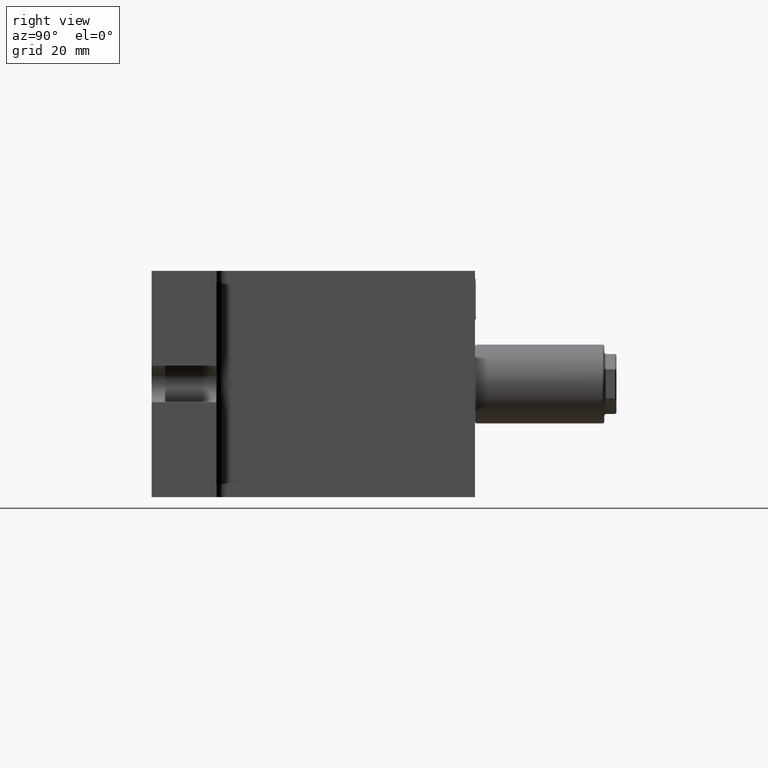
[diagram: clean part render]
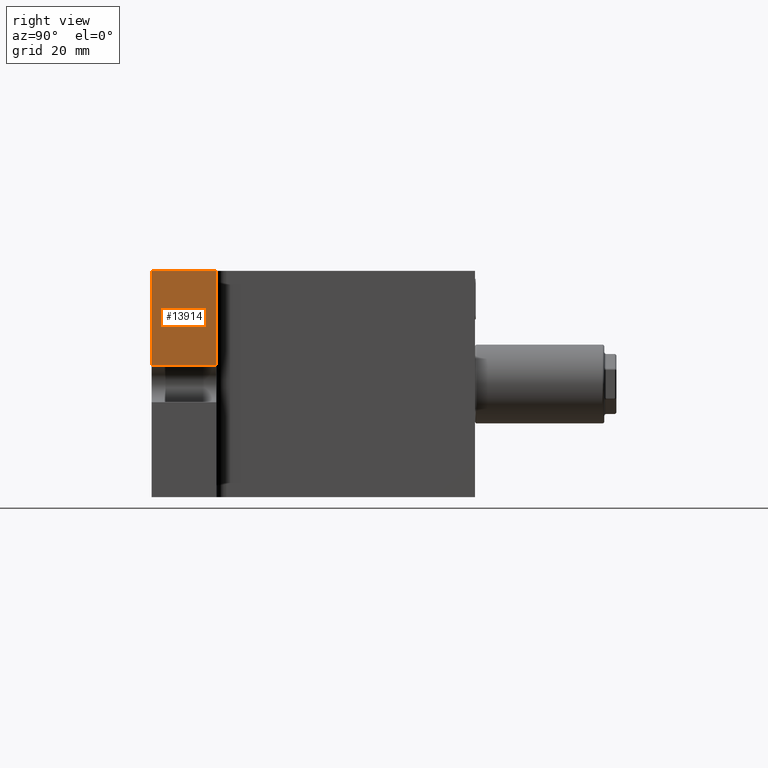
[diagram: same view with one face highlighted and labeled with its STEP entity id]
A machine part, right view. The second image highlights one B-rep face of the part: STEP entity #13914.
In plain terms, the highlighted planar face has unit normal (-1, 0, 0).
Its self-contained STEP definition (entity closure, byte-faithful):
#465 = DIRECTION ( 'NONE',  ( 0.0000000000000000000, 0.0000000000000000000, -1.000000000000000000 ) ) ;
#1018 = VERTEX_POINT ( 'NONE', #17572 ) ;
#1173 = ORIENTED_EDGE ( 'NONE', *, *, #5956, .T. ) ;
#1547 = EDGE_LOOP ( 'NONE', ( #17651, #1173, #4254, #2606 ) ) ;
#1609 = DIRECTION ( 'NONE',  ( 0.0000000000000000000, 0.0000000000000000000, 1.000000000000000000 ) ) ;
#2606 = ORIENTED_EDGE ( 'NONE', *, *, #10287, .F. ) ;
#2671 = EDGE_CURVE ( 'NONE', #18448, #1018, #11866, .T. ) ;
#3405 = VECTOR ( 'NONE', #9083, 1000.000000000000000 ) ;
#4062 = VECTOR ( 'NONE', #5859, 1000.000000000000000 ) ;
#4254 = ORIENTED_EDGE ( 'NONE', *, *, #2671, .T. ) ;
#4456 = VERTEX_POINT ( 'NONE', #13961 ) ;
#5859 = DIRECTION ( 'NONE',  ( 0.0000000000000000000, 1.000000000000000000, 0.0000000000000000000 ) ) ;
#5956 = EDGE_CURVE ( 'NONE', #4456, #18448, #9451, .T. ) ;
#7944 = EDGE_CURVE ( 'NONE', #9404, #4456, #17244, .T. ) ;
#8829 = CARTESIAN_POINT ( 'NONE',  ( 64.00000000000000000, -40.00000000000000000, 28.00000000000000000 ) ) ;
#9083 = DIRECTION ( 'NONE',  ( 0.0000000000000000000, 1.000000000000000000, 0.0000000000000000000 ) ) ;
#9125 = CARTESIAN_POINT ( 'NONE',  ( 64.00000000000000000, -40.00000000000000000, 28.00000000000000000 ) ) ;
#9404 = VERTEX_POINT ( 'NONE', #16288 ) ;
#9451 = LINE ( 'NONE', #19134, #3405 ) ;
#10287 = EDGE_CURVE ( 'NONE', #9404, #1018, #20567, .T. ) ;
#10726 = DIRECTION ( 'NONE',  ( -1.000000000000000000, 0.0000000000000000000, 0.0000000000000000000 ) ) ;
#10872 = DIRECTION ( 'NONE',  ( 0.0000000000000000000, 0.0000000000000000000, 1.000000000000000000 ) ) ;
#11866 = LINE ( 'NONE', #13334, #20268 ) ;
#11871 = CARTESIAN_POINT ( 'NONE',  ( 64.00000000000000000, -24.00000000000000000, 4.500000000000000000 ) ) ;
#12230 = VECTOR ( 'NONE', #465, 1000.000000000000000 ) ;
#12621 = PLANE ( 'NONE',  #17010 ) ;
#12655 = CARTESIAN_POINT ( 'NONE',  ( 64.00000000000000000, -40.00000000000000000, 28.00000000000000000 ) ) ;
#13334 = CARTESIAN_POINT ( 'NONE',  ( 64.00000000000000000, -24.00000000000000000, -28.00000000000000000 ) ) ;
#13914 = ADVANCED_FACE ( 'NONE', ( #19692 ), #12621, .F. ) ;
#13961 = CARTESIAN_POINT ( 'NONE',  ( 64.00000000000000000, -40.00000000000000000, 4.500000000000000000 ) ) ;
#16288 = CARTESIAN_POINT ( 'NONE',  ( 64.00000000000000000, -40.00000000000000000, 28.00000000000000000 ) ) ;
#17010 = AXIS2_PLACEMENT_3D ( 'NONE', #9125, #10726, #10872 ) ;
#17244 = LINE ( 'NONE', #8829, #12230 ) ;
#17572 = CARTESIAN_POINT ( 'NONE',  ( 64.00000000000000000, -24.00000000000000000, 28.00000000000000000 ) ) ;
#17651 = ORIENTED_EDGE ( 'NONE', *, *, #7944, .T. ) ;
#18448 = VERTEX_POINT ( 'NONE', #11871 ) ;
#19134 = CARTESIAN_POINT ( 'NONE',  ( 64.00000000000000000, -40.00000000000000000, 4.500000000000000000 ) ) ;
#19692 = FACE_OUTER_BOUND ( 'NONE', #1547, .T. ) ;
#20268 = VECTOR ( 'NONE', #1609, 1000.000000000000000 ) ;
#20567 = LINE ( 'NONE', #12655, #4062 ) ;